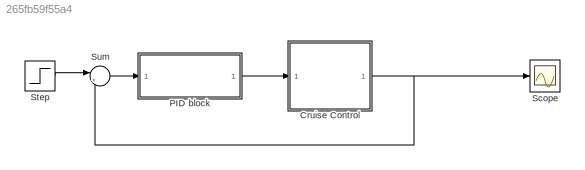
MODEL slx_265fb59f55a4
KIND model
CONFIG AbsTol = auto
CONFIG EnableMultiTasking = off
CONFIG FixedStep = auto
CONFIG MaxStep = auto
CONFIG MinStep = auto
CONFIG RelTol = 1e-3
CONFIG SampleTimeConstraint = Unconstrained
CONFIG SolverName = VariableStepAuto
CONFIG StartTime = 0.0
CONFIG StopTime = 120
WORKSPACE source: mxarray member
WORKSPACE Kd: Simulink.Parameter (value not decoded)
WORKSPACE Ki: Simulink.Parameter (value not decoded)
WORKSPACE Kp: Simulink.Parameter (value not decoded)
WORKSPACE b: Simulink.Parameter (value not decoded)
WORKSPACE m: Simulink.Parameter (value not decoded)
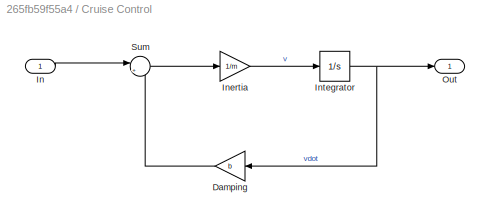
BLOCK [SubSystem] Cruise Control
  Ports = [1, 1]
  RequestExecContextInheritance = off
BLOCK [Gain] Cruise Control/Damping
  Gain = b
BLOCK [Inport] Cruise Control/In
BLOCK [Gain] Cruise Control/Inertia
  Gain = 1/m
BLOCK [Integrator] Cruise Control/Integrator
  Ports = [1, 1]
BLOCK [Outport] Cruise Control/Out
BLOCK [Sum] Cruise Control/Sum
  Inputs = |+-
  Ports = [2, 1]
BLOCK [ModelReference] PID block
  ModelNameDialog = PID_block
  ModelReferenceVersion = 1.9
  Ports = [1, 1]
BLOCK [Scope] Scope
  Floating = off
  NumInputPorts = 1
  Ports = [1]
  ScopeSpecificationString = Simulink.scopes.TimeScopeBlockCfg('CurrentConfiguration', extmgr.ConfigurationSet(extmgr.Configuration('Core','General UI',true),extmgr.Configuration('Core','Source UI',true),extmgr.Configuration('Sources','WiredSimulink',true),extmgr.Configuration('Visuals','Time Domain',true,'SerializedDisplays',{struct('MinYLimReal','-87.37782','MaxYLimReal','786.40034','YLabelReal','','MinYLimMag','0.00000','M...<+1375ch>
BLOCK [Step] Step
  After = 500
  SampleTime = 0
  Time = 0
BLOCK [Sum] Sum
  Inputs = |+-
  Ports = [2, 1]
LINE Cruise Control/Damping:1 -> Cruise Control/Sum:2
LINE Cruise Control/In:1 -> Cruise Control/Sum:1
LINE Cruise Control/Inertia:1 -> Cruise Control/Integrator:1
NET Cruise Control/Integrator:1 -> Cruise Control/Damping:1, Cruise Control/Out:1
LINE Cruise Control/Sum:1 -> Cruise Control/Inertia:1
NET Cruise Control:1 -> Scope:1, Sum:2
LINE PID block:1 -> Cruise Control:1
LINE Step:1 -> Sum:1
LINE Sum:1 -> PID block:1
note: NET lines group one-source signal fan-out (src -> all destinations, sorted); 1:1 wires keep LINE
